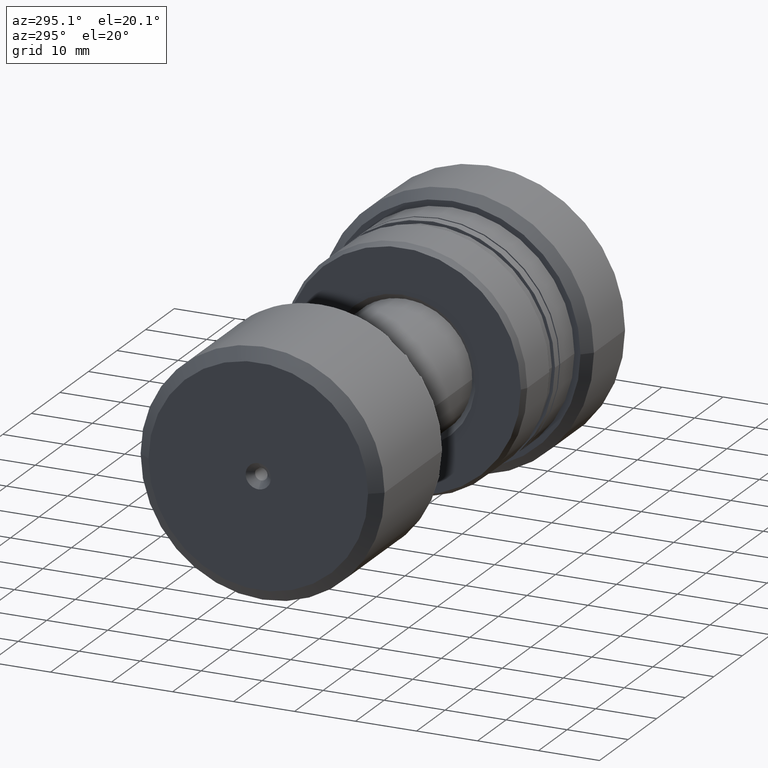
[diagram: clean part render]
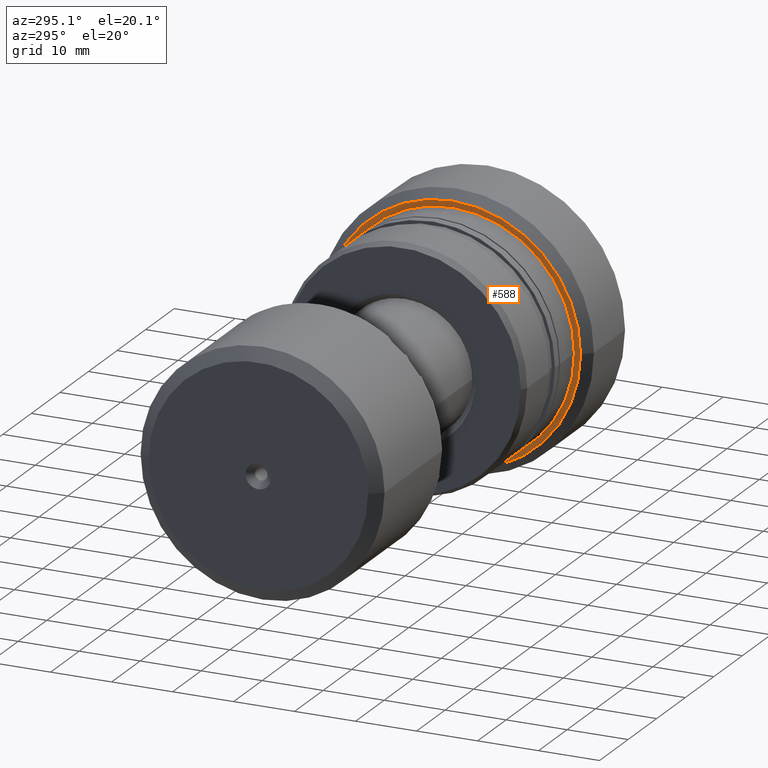
[diagram: same view with one face highlighted and labeled with its STEP entity id]
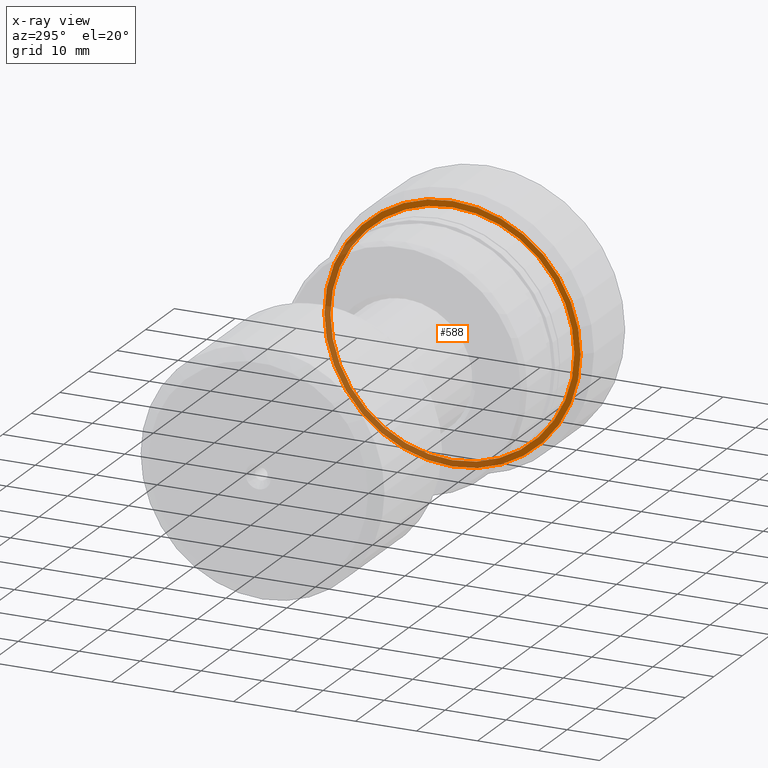
[diagram: x-ray of the same camera — body ghosted, the highlighted face saturated]
A machine part, auxiliary view. The second image highlights one B-rep face of the part: STEP entity #588.
The next image is the same camera in x-ray: the body ghosted, the highlighted face saturated — about 43% of this face is hidden behind the body in this view.
In plain terms, the highlighted planar face has unit normal (1, 0, 0).
Its self-contained STEP definition (entity closure, byte-faithful):
#22 = CARTESIAN_POINT ( 'NONE',  ( -14.00000000000005684, 4.948463040683101197E-14, 0.000000000000000000 ) ) ;
#111 = ORIENTED_EDGE ( 'NONE', *, *, #2370, .F. ) ;
#178 = PLANE ( 'NONE',  #912 ) ;
#184 = DIRECTION ( 'NONE',  ( -3.056417552911410408E-15, 1.000000000000000000, 0.000000000000000000 ) ) ;
#185 = DIRECTION ( 'NONE',  ( 1.000000000000000000, 3.039592211588219332E-15, -0.000000000000000000 ) ) ;
#240 = DIRECTION ( 'NONE',  ( -3.035766082959404132E-15, 1.000000000000000000, 0.000000000000000000 ) ) ;
#381 = ORIENTED_EDGE ( 'NONE', *, *, #1420, .F. ) ;
#413 = EDGE_CURVE ( 'NONE', #552, #1894, #547, .T. ) ;
#420 = DIRECTION ( 'NONE',  ( -3.035766082959404132E-15, 1.000000000000000000, 0.000000000000000000 ) ) ;
#431 = DIRECTION ( 'NONE',  ( 1.000000000000000000, 3.039592211588219332E-15, -0.000000000000000000 ) ) ;
#547 = CIRCLE ( 'NONE', #842, 20.00000000000005329 ) ;
#552 = VERTEX_POINT ( 'NONE', #1595 ) ;
#588 = ADVANCED_FACE ( 'NONE', ( #2225, #2417 ), #178, .F. ) ;
#654 = CARTESIAN_POINT ( 'NONE',  ( -14.00000000000005684, 4.948463040683101197E-14, 0.000000000000000000 ) ) ;
#698 = ORIENTED_EDGE ( 'NONE', *, *, #413, .T. ) ;
#842 = AXIS2_PLACEMENT_3D ( 'NONE', #654, #1349, #420 ) ;
#873 = CARTESIAN_POINT ( 'NONE',  ( -14.00000000000012257, 21.00000000000078515, 0.000000000000000000 ) ) ;
#912 = AXIS2_PLACEMENT_3D ( 'NONE', #1126, #1672, #1489 ) ;
#928 = CARTESIAN_POINT ( 'NONE',  ( -13.99999999999999645, -20.00000000000000355, 2.449293598294712429E-15 ) ) ;
#954 = DIRECTION ( 'NONE',  ( 1.000000000000000000, 3.039592211588219332E-15, -0.000000000000000000 ) ) ;
#1006 = EDGE_LOOP ( 'NONE', ( #111, #381 ) ) ;
#1126 = CARTESIAN_POINT ( 'NONE',  ( -13.99999999999999645, -20.00000000000000355, 0.000000000000000000 ) ) ;
#1143 = VERTEX_POINT ( 'NONE', #1223 ) ;
#1146 = AXIS2_PLACEMENT_3D ( 'NONE', #1360, #431, #184 ) ;
#1185 = CIRCLE ( 'NONE', #1450, 21.00000000000073541 ) ;
#1223 = CARTESIAN_POINT ( 'NONE',  ( -13.99999999999999289, -21.00000000000068923, 2.663606788145541932E-15 ) ) ;
#1349 = DIRECTION ( 'NONE',  ( 1.000000000000000000, 3.039592211588219332E-15, -0.000000000000000000 ) ) ;
#1360 = CARTESIAN_POINT ( 'NONE',  ( -14.00000000000005684, 4.948463040683101197E-14, 0.000000000000000000 ) ) ;
#1420 = EDGE_CURVE ( 'NONE', #1143, #2164, #1185, .T. ) ;
#1450 = AXIS2_PLACEMENT_3D ( 'NONE', #2068, #954, #1683 ) ;
#1489 = DIRECTION ( 'NONE',  ( -3.039592211588219332E-15, 1.000000000000000000, 0.000000000000000000 ) ) ;
#1533 = CIRCLE ( 'NONE', #1833, 20.00000000000005329 ) ;
#1595 = CARTESIAN_POINT ( 'NONE',  ( -14.00000000000011902, 20.00000000000009948, 0.000000000000000000 ) ) ;
#1672 = DIRECTION ( 'NONE',  ( 1.000000000000000000, 3.039592211588219332E-15, -0.000000000000000000 ) ) ;
#1683 = DIRECTION ( 'NONE',  ( -3.056417552911410408E-15, 1.000000000000000000, 0.000000000000000000 ) ) ;
#1768 = ORIENTED_EDGE ( 'NONE', *, *, #1936, .T. ) ;
#1833 = AXIS2_PLACEMENT_3D ( 'NONE', #22, #185, #240 ) ;
#1894 = VERTEX_POINT ( 'NONE', #928 ) ;
#1936 = EDGE_CURVE ( 'NONE', #1894, #552, #1533, .T. ) ;
#1961 = CIRCLE ( 'NONE', #1146, 21.00000000000073541 ) ;
#2068 = CARTESIAN_POINT ( 'NONE',  ( -14.00000000000005684, 4.948463040683101197E-14, 0.000000000000000000 ) ) ;
#2154 = EDGE_LOOP ( 'NONE', ( #698, #1768 ) ) ;
#2164 = VERTEX_POINT ( 'NONE', #873 ) ;
#2225 = FACE_OUTER_BOUND ( 'NONE', #1006, .T. ) ;
#2370 = EDGE_CURVE ( 'NONE', #2164, #1143, #1961, .T. ) ;
#2417 = FACE_BOUND ( 'NONE', #2154, .T. ) ;